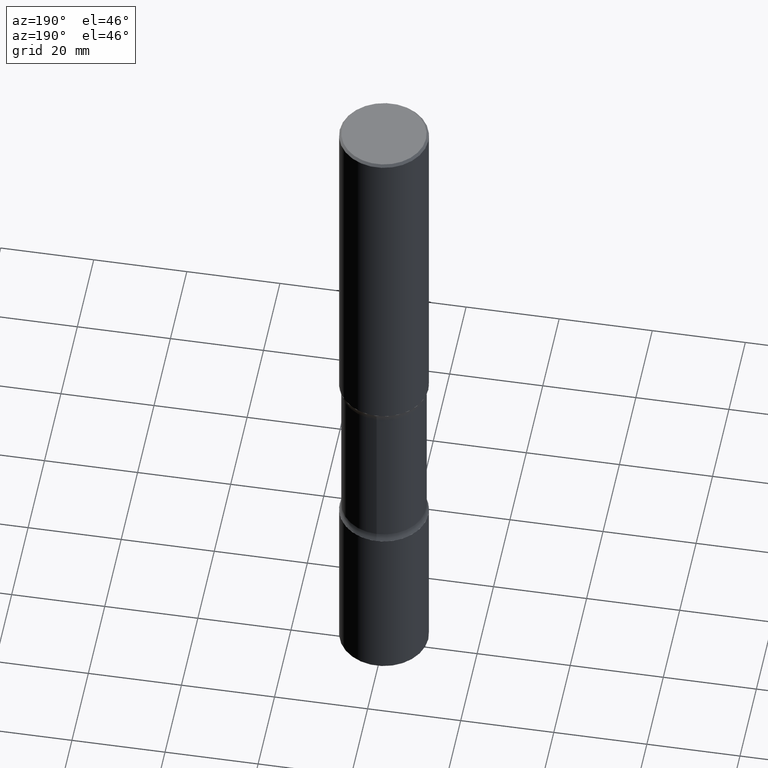
[diagram: clean part render]
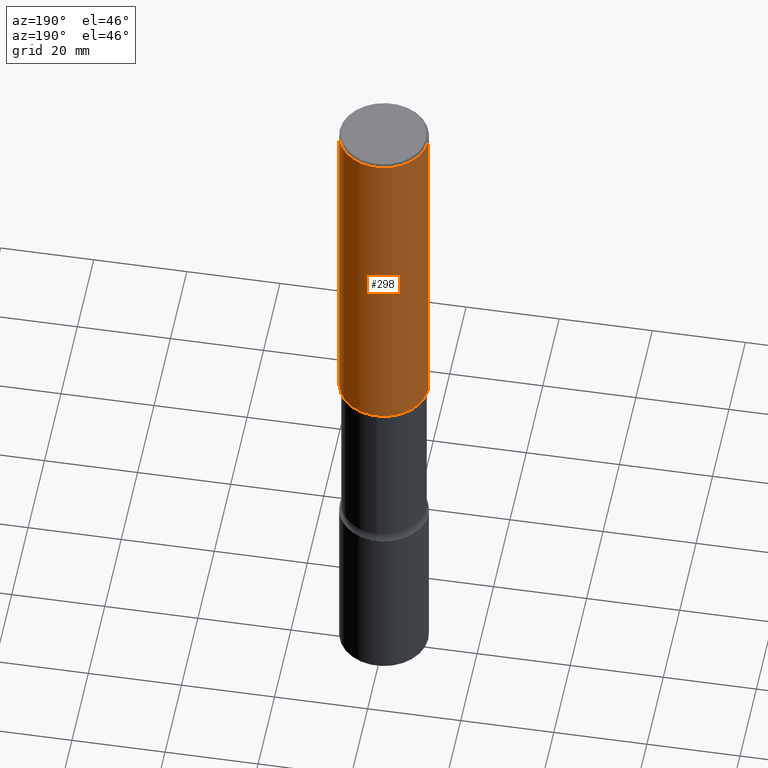
[diagram: same view with one face highlighted and labeled with its STEP entity id]
A machine part, auxiliary view. The second image highlights one B-rep face of the part: STEP entity #298.
In plain terms, the highlighted cylindrical surface (partial cylindrical patch) has radius 9.525 mm, axis along (-0, 0, 1).
Its self-contained STEP definition (entity closure, byte-faithful):
#2 = CIRCLE ( 'NONE', #344, 0.3750000000000001110 ) ;
#16 = DIRECTION ( 'NONE',  ( 1.000000000000000000, -6.982962677686265922E-15, 0.000000000000000000 ) ) ;
#20 = VECTOR ( 'NONE', #213, 39.37007874015748143 ) ;
#21 = CARTESIAN_POINT ( 'NONE',  ( 4.890937612370289799E-31, -6.982962677686315028E-17, -0.02000000000000006981 ) ) ;
#28 = VERTEX_POINT ( 'NONE', #204 ) ;
#61 = EDGE_CURVE ( 'NONE', #292, #368, #2, .T. ) ;
#69 = EDGE_CURVE ( 'NONE', #528, #28, #163, .T. ) ;
#112 = DIRECTION ( 'NONE',  ( 1.000000000000000000, -6.982962677686266711E-15, 4.876176775795935793E-29 ) ) ;
#137 = CARTESIAN_POINT ( 'NONE',  ( -0.3750000000000001110, 2.548781377355487113E-15, -0.02000000000000006981 ) ) ;
#155 = CYLINDRICAL_SURFACE ( 'NONE', #223, 0.3750000000000002220 ) ;
#163 = CIRCLE ( 'NONE', #221, 0.3750000000000003886 ) ;
#176 = EDGE_CURVE ( 'NONE', #528, #292, #325, .T. ) ;
#184 = ORIENTED_EDGE ( 'NONE', *, *, #365, .T. ) ;
#190 = EDGE_LOOP ( 'NONE', ( #220, #184, #195, #224 ) ) ;
#195 = ORIENTED_EDGE ( 'NONE', *, *, #61, .F. ) ;
#204 = CARTESIAN_POINT ( 'NONE',  ( -0.3750000000000003886, -2.607601562552767029E-15, -2.999999999999999112 ) ) ;
#213 = DIRECTION ( 'NONE',  ( -2.445468806185136877E-29, 3.491481338843145188E-15, 1.000000000000000000 ) ) ;
#220 = ORIENTED_EDGE ( 'NONE', *, *, #69, .T. ) ;
#221 = AXIS2_PLACEMENT_3D ( 'NONE', #290, #411, #284 ) ;
#223 = AXIS2_PLACEMENT_3D ( 'NONE', #383, #496, #112 ) ;
#224 = ORIENTED_EDGE ( 'NONE', *, *, #176, .F. ) ;
#236 = DIRECTION ( 'NONE',  ( -2.445468806185136597E-29, 3.491481338843145583E-15, 1.000000000000000000 ) ) ;
#255 = CARTESIAN_POINT ( 'NONE',  ( 0.3750000000000001110, -2.642516375941188423E-15, -0.02000000000000006981 ) ) ;
#284 = DIRECTION ( 'NONE',  ( 1.000000000000000000, -6.982962677686265922E-15, 0.000000000000000000 ) ) ;
#290 = CARTESIAN_POINT ( 'NONE',  ( 7.336406418555407548E-29, -1.047444401652943320E-14, -2.999999999999999112 ) ) ;
#292 = VERTEX_POINT ( 'NONE', #255 ) ;
#298 = ADVANCED_FACE ( 'NONE', ( #459 ), #155, .T. ) ;
#325 = LINE ( 'NONE', #363, #366 ) ;
#344 = AXIS2_PLACEMENT_3D ( 'NONE', #21, #236, #16 ) ;
#363 = CARTESIAN_POINT ( 'NONE',  ( 0.3750000000000002220, -2.618611004132351594E-15, 1.828566290923477043E-29 ) ) ;
#365 = EDGE_CURVE ( 'NONE', #28, #368, #434, .T. ) ;
#366 = VECTOR ( 'NONE', #494, 39.37007874015748143 ) ;
#368 = VERTEX_POINT ( 'NONE', #137 ) ;
#383 = CARTESIAN_POINT ( 'NONE',  ( 0.000000000000000000, 0.000000000000000000, 0.000000000000000000 ) ) ;
#411 = DIRECTION ( 'NONE',  ( -2.445468806185136597E-29, 3.491481338843145583E-15, 1.000000000000000000 ) ) ;
#434 = LINE ( 'NONE', #558, #20 ) ;
#459 = FACE_OUTER_BOUND ( 'NONE', #190, .T. ) ;
#470 = CARTESIAN_POINT ( 'NONE',  ( 0.3750000000000003886, -1.309305502066178637E-14, -2.999999999999999112 ) ) ;
#494 = DIRECTION ( 'NONE',  ( -2.445468806185136877E-29, 3.491481338843145188E-15, 1.000000000000000000 ) ) ;
#496 = DIRECTION ( 'NONE',  ( -2.445468806185136597E-29, 3.491481338843145583E-15, 1.000000000000000000 ) ) ;
#528 = VERTEX_POINT ( 'NONE', #470 ) ;
#558 = CARTESIAN_POINT ( 'NONE',  ( -0.3750000000000002220, 2.664535259100377275E-15, -1.844600658845590719E-29 ) ) ;